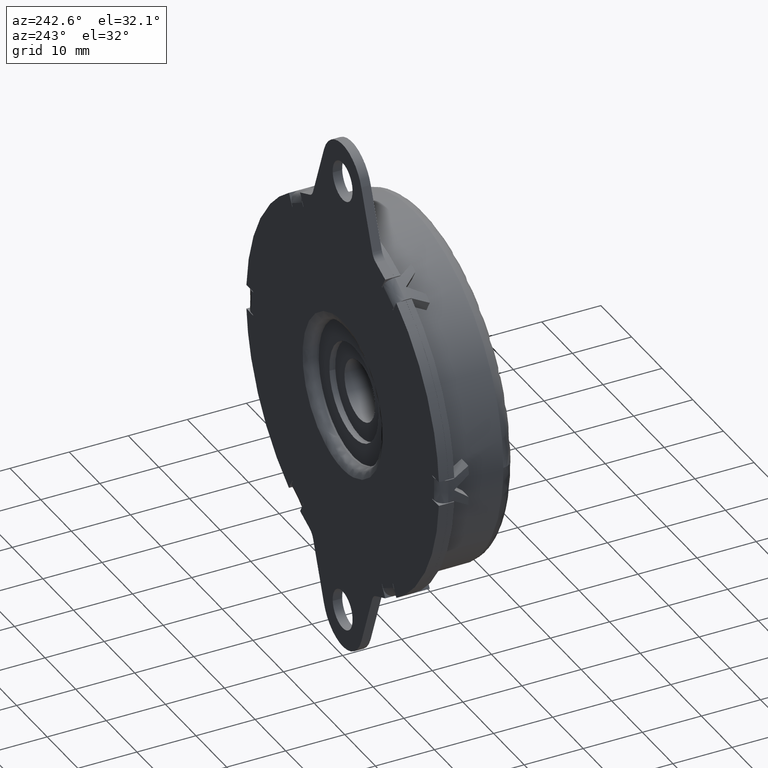
[diagram: clean part render]
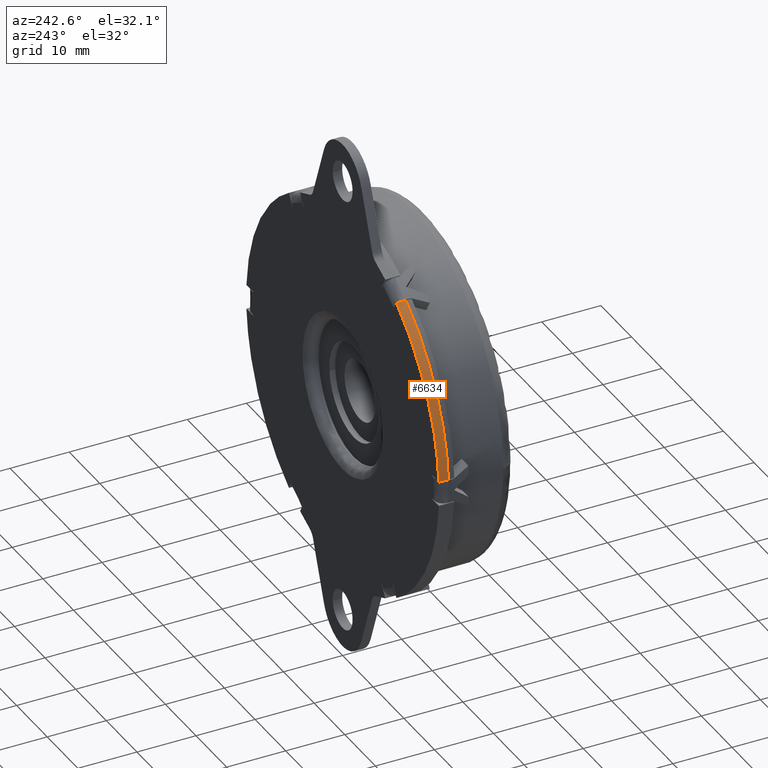
[diagram: same view with one face highlighted and labeled with its STEP entity id]
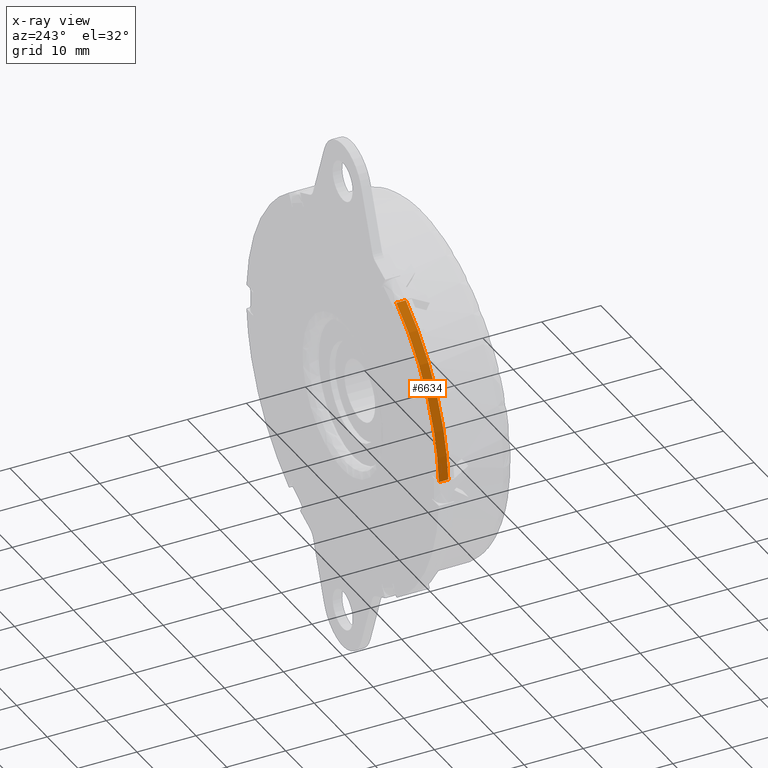
[diagram: x-ray of the same camera — body ghosted, the highlighted face saturated]
A machine part, auxiliary view. The second image highlights one B-rep face of the part: STEP entity #6634.
The next image is the same camera in x-ray: the body ghosted, the highlighted face saturated — about 0% of this face is hidden behind the body in this view.
In plain terms, the highlighted face is a freeform B-spline surface patch.
Its self-contained STEP definition (entity closure, byte-faithful):
#6574=CARTESIAN_POINT('',(-16.375445670102881,-1.639999999999934,26.909009255368510));
#6575=CARTESIAN_POINT('',(-16.375445670102881,0.040999999999998,26.909009255368510));
#6576=CARTESIAN_POINT('',(-31.098586923000429,-1.639999999999934,17.949259106560127));
#6577=CARTESIAN_POINT('',(-31.098586923000429,0.040999999999998,17.949259106560127));
#6578=CARTESIAN_POINT('',(-31.491800861138856,-1.639999999999933,0.718664401771219));
#6579=CARTESIAN_POINT('',(-31.491800861138856,0.040999999999998,0.718664401771219));
#6587=(BOUNDED_SURFACE()B_SPLINE_SURFACE(1,2,((#6574,#6576,#6578),(#6575,#6577,#6579)),.UNSPECIFIED.,.F.,.F.,.U.)B_SPLINE_SURFACE_WITH_KNOTS((2,2),(3,3),(0.0,1.0),(0.0,32.216618577192847),.UNSPECIFIED.)GEOMETRIC_REPRESENTATION_ITEM()RATIONAL_B_SPLINE_SURFACE(((1.0,0.876039202247768,0.997193151459060),(1.0,0.876039202247768,0.997193151459060)))REPRESENTATION_ITEM('')SURFACE());
#6588=CARTESIAN_POINT('',(-17.533614372397849,-1.599999999999935,26.169110933313050));
#6589=VERTEX_POINT('',#6588);
#6590=CARTESIAN_POINT('',(-31.429922048901101,-1.599999999999935,2.099999999999930));
#6591=VERTEX_POINT('',#6590);
#6592=CARTESIAN_POINT('',(-17.533614372397832,-1.599999999999935,26.169110933313039));
#6593=CARTESIAN_POINT('',(-30.397620531195191,-1.599999999999935,17.550074396409634));
#6594=CARTESIAN_POINT('',(-31.429922048901108,-1.599999999999935,2.099999999999938));
#6602=(BOUNDED_CURVE()B_SPLINE_CURVE(2,(#6592,#6593,#6594),.UNSPECIFIED.,.F.,.U.)CURVE()GEOMETRIC_REPRESENTATION_ITEM()QUASI_UNIFORM_CURVE()RATIONAL_B_SPLINE_CURVE((1.0,0.897432093121047,1.0))REPRESENTATION_ITEM(''));
#6603=EDGE_CURVE('',#6589,#6591,#6602,.T.);
#6604=ORIENTED_EDGE('',*,*,#6603,.F.);
#6605=CARTESIAN_POINT('',(-17.533614370085850,0.0,26.169110929308601));
#6606=VERTEX_POINT('',#6605);
#6607=CARTESIAN_POINT('',(-17.533614372397849,-1.599999999999935,26.169110933313050));
#6608=CARTESIAN_POINT('',(-17.533614370085850,0.0,26.169110929308601));
#6609=QUASI_UNIFORM_CURVE('',1,(#6607,#6608),.UNSPECIFIED.,.F.,.U.);
#6610=EDGE_CURVE('',#6589,#6606,#6609,.T.);
#6611=ORIENTED_EDGE('',*,*,#6610,.T.);
#6612=CARTESIAN_POINT('',(-31.429922048901101,0.0,2.099999999999945));
#6613=VERTEX_POINT('',#6612);
#6614=CARTESIAN_POINT('',(-17.533614370085850,0.0,26.169110929308601));
#6615=CARTESIAN_POINT('',(-30.397620531207941,0.0,17.550074396218687));
#6616=CARTESIAN_POINT('',(-31.429922048901108,0.0,2.099999999999938));
#6624=(BOUNDED_CURVE()B_SPLINE_CURVE(2,(#6614,#6615,#6616),.UNSPECIFIED.,.F.,.U.)CURVE()GEOMETRIC_REPRESENTATION_ITEM()QUASI_UNIFORM_CURVE()RATIONAL_B_SPLINE_CURVE((1.0,0.897432093123206,1.0))REPRESENTATION_ITEM(''));
#6625=EDGE_CURVE('',#6606,#6613,#6624,.T.);
#6626=ORIENTED_EDGE('',*,*,#6625,.T.);
#6627=CARTESIAN_POINT('',(-31.429922048901101,-1.599999999999935,2.099999999999930));
#6628=CARTESIAN_POINT('',(-31.429922048901101,0.0,2.099999999999945));
#6629=QUASI_UNIFORM_CURVE('',1,(#6627,#6628),.UNSPECIFIED.,.F.,.U.);
#6630=EDGE_CURVE('',#6591,#6613,#6629,.T.);
#6631=ORIENTED_EDGE('',*,*,#6630,.F.);
#6632=EDGE_LOOP('',(#6604,#6611,#6626,#6631));
#6633=FACE_OUTER_BOUND('',#6632,.T.);
#6634=ADVANCED_FACE('',(#6633),#6587,.T.);